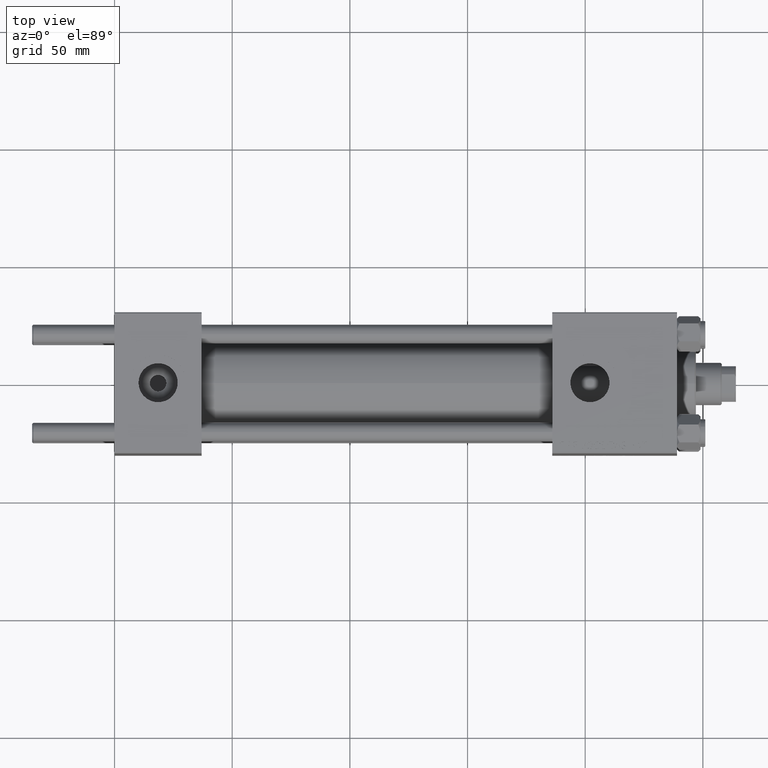
[diagram: clean part render]
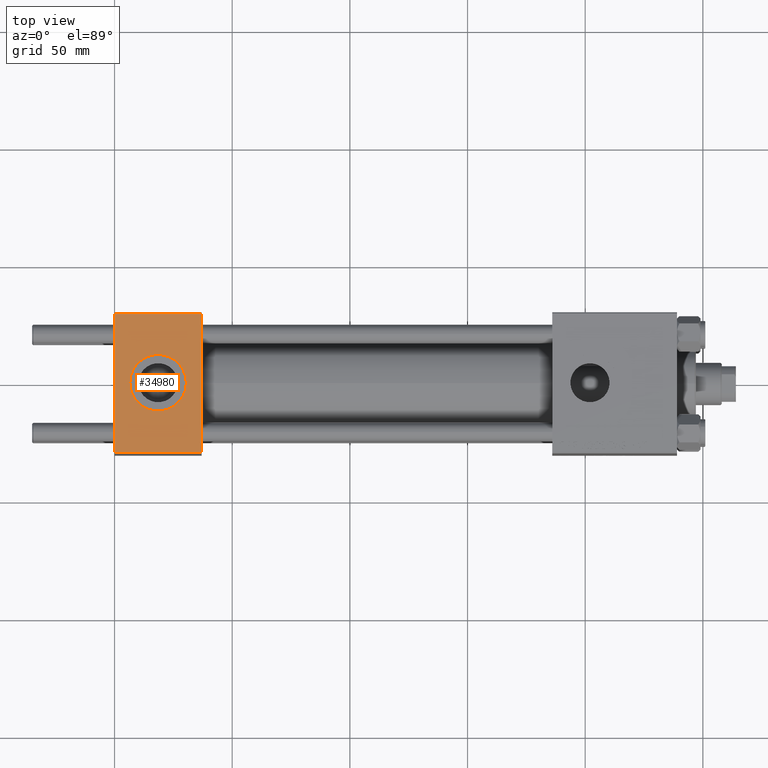
[diagram: same view with one face highlighted and labeled with its STEP entity id]
A machine part, top view. The second image highlights one B-rep face of the part: STEP entity #34980.
In plain terms, the highlighted planar face has unit normal (0, 0, -1).
Its self-contained STEP definition (entity closure, byte-faithful):
#3389 = EDGE_CURVE ( 'NONE', #6885, #35670, #6430, .T. ) ;
#3909 = AXIS2_PLACEMENT_3D ( 'NONE', #35832, #13035, #5451 ) ;
#5451 = DIRECTION ( 'NONE',  ( 1.000000000000000000, 0.000000000000000000, 0.000000000000000000 ) ) ;
#6430 = LINE ( 'NONE', #18058, #7600 ) ;
#6563 = CARTESIAN_POINT ( 'NONE',  ( 0.000000000000000000, 29.49999999999999289, 30.00000000000000000 ) ) ;
#6885 = VERTEX_POINT ( 'NONE', #10615 ) ;
#6921 = DIRECTION ( 'NONE',  ( 0.000000000000000000, 1.156482317317871725E-16, -1.000000000000000000 ) ) ;
#7155 = CARTESIAN_POINT ( 'NONE',  ( 37.00000000000000000, -29.50000000000000000, 29.99999999999999289 ) ) ;
#7177 = DIRECTION ( 'NONE',  ( 0.000000000000000000, -1.000000000000000000, -1.156482317317871725E-16 ) ) ;
#7600 = VECTOR ( 'NONE', #7177, 1000.000000000000000 ) ;
#7650 = PLANE ( 'NONE',  #41181 ) ;
#8969 = VERTEX_POINT ( 'NONE', #39189 ) ;
#9977 = VERTEX_POINT ( 'NONE', #48092 ) ;
#10615 = CARTESIAN_POINT ( 'NONE',  ( 37.00000000000000000, 29.49999999999999289, 30.00000000000000000 ) ) ;
#10843 = EDGE_CURVE ( 'NONE', #31673, #9977, #43619, .T. ) ;
#11342 = EDGE_CURVE ( 'NONE', #6885, #31673, #41246, .T. ) ;
#12083 = EDGE_LOOP ( 'NONE', ( #49070, #20532, #19842, #16549 ) ) ;
#12944 = DIRECTION ( 'NONE',  ( 1.000000000000000000, 0.000000000000000000, 0.000000000000000000 ) ) ;
#13035 = DIRECTION ( 'NONE',  ( 0.000000000000000000, 0.000000000000000000, 1.000000000000000000 ) ) ;
#13934 = VECTOR ( 'NONE', #37444, 1000.000000000000000 ) ;
#16338 = VECTOR ( 'NONE', #24365, 1000.000000000000000 ) ;
#16549 = ORIENTED_EDGE ( 'NONE', *, *, #11342, .T. ) ;
#18058 = CARTESIAN_POINT ( 'NONE',  ( 37.00000000000000000, 29.99999999999999289, 30.00000000000000000 ) ) ;
#18792 = FACE_BOUND ( 'NONE', #39490, .T. ) ;
#19842 = ORIENTED_EDGE ( 'NONE', *, *, #3389, .F. ) ;
#20532 = ORIENTED_EDGE ( 'NONE', *, *, #31166, .T. ) ;
#21153 = VERTEX_POINT ( 'NONE', #25667 ) ;
#21305 = LINE ( 'NONE', #7155, #34553 ) ;
#23871 = EDGE_CURVE ( 'NONE', #8969, #21153, #28729, .T. ) ;
#24365 = DIRECTION ( 'NONE',  ( 0.000000000000000000, -1.000000000000000000, -1.156482317317871725E-16 ) ) ;
#25521 = AXIS2_PLACEMENT_3D ( 'NONE', #35249, #42840, #12944 ) ;
#25667 = CARTESIAN_POINT ( 'NONE',  ( 6.499999999999997335, -1.999870792976790833E-15, 29.99999999999999645 ) ) ;
#27683 = CARTESIAN_POINT ( 'NONE',  ( 0.000000000000000000, 29.99999999999999289, 30.00000000000000000 ) ) ;
#28729 = CIRCLE ( 'NONE', #25521, 12.00000000000000000 ) ;
#31166 = EDGE_CURVE ( 'NONE', #9977, #35670, #21305, .T. ) ;
#31673 = VERTEX_POINT ( 'NONE', #48219 ) ;
#33552 = EDGE_CURVE ( 'NONE', #21153, #8969, #44300, .T. ) ;
#34553 = VECTOR ( 'NONE', #42081, 1000.000000000000000 ) ;
#34980 = ADVANCED_FACE ( 'NONE', ( #18792, #38291 ), #7650, .F. ) ;
#35249 = CARTESIAN_POINT ( 'NONE',  ( 18.50000000000000000, -3.469446951953614978E-15, 29.99999999999999645 ) ) ;
#35670 = VERTEX_POINT ( 'NONE', #49571 ) ;
#35832 = CARTESIAN_POINT ( 'NONE',  ( 18.50000000000000000, -3.469446951953614978E-15, 29.99999999999999645 ) ) ;
#36555 = ORIENTED_EDGE ( 'NONE', *, *, #23871, .F. ) ;
#37444 = DIRECTION ( 'NONE',  ( -1.000000000000000000, 0.000000000000000000, 0.000000000000000000 ) ) ;
#38291 = FACE_OUTER_BOUND ( 'NONE', #12083, .T. ) ;
#38340 = ORIENTED_EDGE ( 'NONE', *, *, #33552, .F. ) ;
#39189 = CARTESIAN_POINT ( 'NONE',  ( 30.50000000000000000, -3.469446951953614978E-15, 29.99999999999999645 ) ) ;
#39490 = EDGE_LOOP ( 'NONE', ( #36555, #38340 ) ) ;
#41181 = AXIS2_PLACEMENT_3D ( 'NONE', #41596, #6921, #46366 ) ;
#41246 = LINE ( 'NONE', #6563, #13934 ) ;
#41596 = CARTESIAN_POINT ( 'NONE',  ( 37.00000000000000000, 29.99999999999999289, 30.00000000000000000 ) ) ;
#42081 = DIRECTION ( 'NONE',  ( 1.000000000000000000, 0.000000000000000000, 0.000000000000000000 ) ) ;
#42840 = DIRECTION ( 'NONE',  ( 0.000000000000000000, 0.000000000000000000, 1.000000000000000000 ) ) ;
#43619 = LINE ( 'NONE', #27683, #16338 ) ;
#44300 = CIRCLE ( 'NONE', #3909, 12.00000000000000000 ) ;
#46366 = DIRECTION ( 'NONE',  ( 0.000000000000000000, 1.000000000000000000, 1.156482317317871725E-16 ) ) ;
#48092 = CARTESIAN_POINT ( 'NONE',  ( 0.000000000000000000, -29.49999999999998579, 29.99999999999999289 ) ) ;
#48219 = CARTESIAN_POINT ( 'NONE',  ( 0.000000000000000000, 29.49999999999999289, 30.00000000000000000 ) ) ;
#49070 = ORIENTED_EDGE ( 'NONE', *, *, #10843, .T. ) ;
#49571 = CARTESIAN_POINT ( 'NONE',  ( 37.00000000000000000, -29.49999999999998579, 29.99999999999999289 ) ) ;